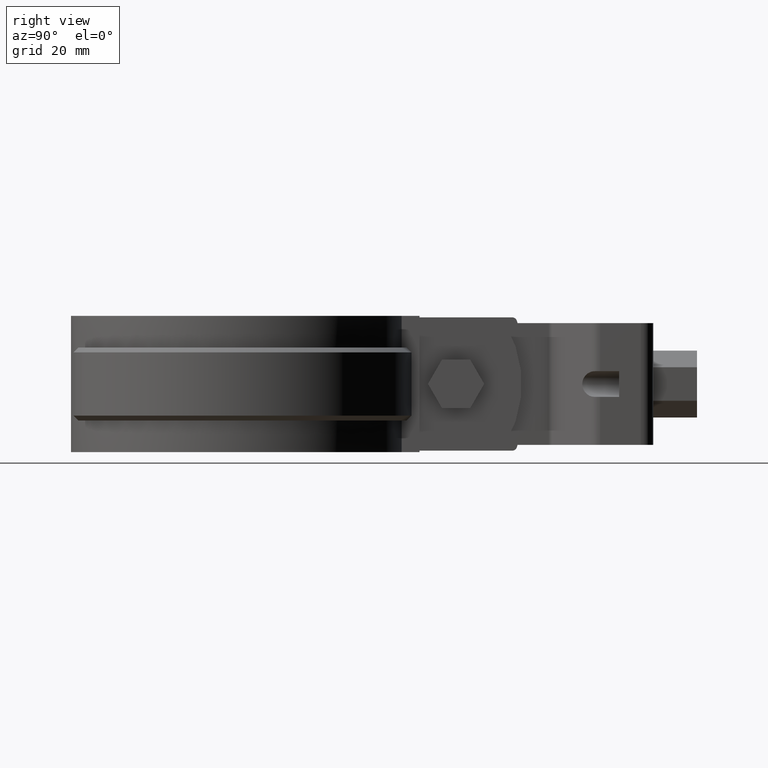
[diagram: clean part render]
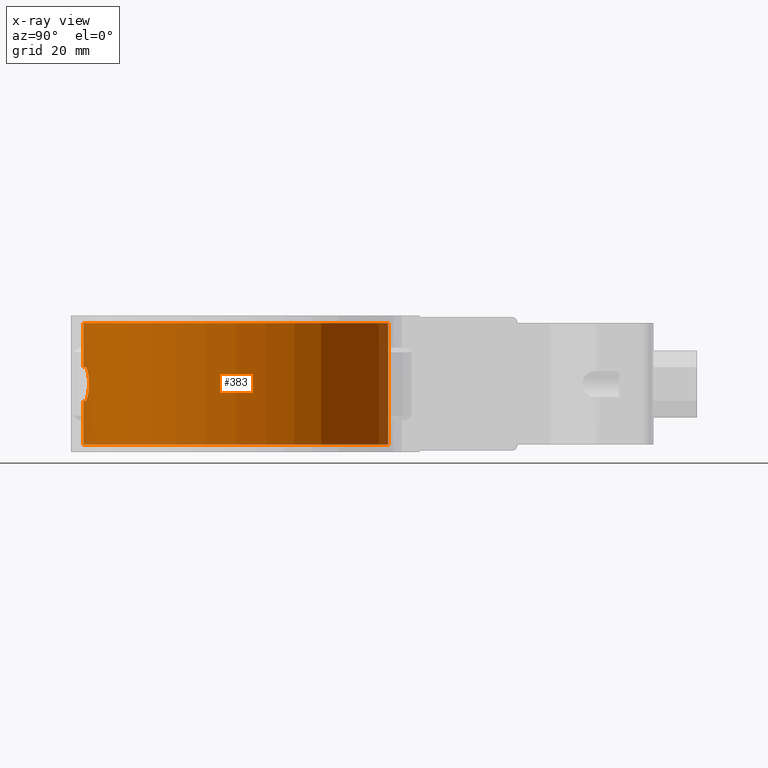
[diagram: x-ray — body ghosted, one internal face saturated and labeled with its STEP entity id]
A machine part, right view, then the same camera in x-ray: the body is ghosted and one INTERNAL B-rep face — a face not visible from any outside direction — is saturated and labeled: STEP entity #383.
In plain terms, the highlighted cylindrical surface (partial cylindrical patch) has radius 31.7 mm, axis along (0, 0, 1).
Its self-contained STEP definition (entity closure, byte-faithful):
#383 = ADVANCED_FACE( '', ( #750, #751 ), #752, .F. );
#750 = FACE_OUTER_BOUND( '', #1533, .T. );
#751 = FACE_BOUND( '', #1534, .T. );
#752 = CYLINDRICAL_SURFACE( '', #1535, 31.7000000000000 );
#1533 = EDGE_LOOP( '', ( #3444, #3445, #3446, #3447 ) );
#1534 = EDGE_LOOP( '', ( #3448, #3449, #3450, #3451, #3452, #3453, #3454, #3455, #3456, #3457, #3458, #3459, #3460, #3461, #3462, #3463 ) );
#1535 = AXIS2_PLACEMENT_3D( '', #3464, #3465, #3466 );
#3444 = ORIENTED_EDGE( '', *, *, #6912, .T. );
#3445 = ORIENTED_EDGE( '', *, *, #6825, .F. );
#3446 = ORIENTED_EDGE( '', *, *, #6913, .F. );
#3447 = ORIENTED_EDGE( '', *, *, #6902, .T. );
#3448 = ORIENTED_EDGE( '', *, *, #6914, .T. );
#3449 = ORIENTED_EDGE( '', *, *, #6887, .T. );
#3450 = ORIENTED_EDGE( '', *, *, #6908, .T. );
#3451 = ORIENTED_EDGE( '', *, *, #6915, .T. );
#3452 = ORIENTED_EDGE( '', *, *, #6916, .T. );
#3453 = ORIENTED_EDGE( '', *, *, #6917, .T. );
#3454 = ORIENTED_EDGE( '', *, *, #6910, .T. );
#3455 = ORIENTED_EDGE( '', *, *, #6918, .T. );
#3456 = ORIENTED_EDGE( '', *, *, #6919, .T. );
#3457 = ORIENTED_EDGE( '', *, *, #6894, .T. );
#3458 = ORIENTED_EDGE( '', *, *, #6920, .T. );
#3459 = ORIENTED_EDGE( '', *, *, #6905, .T. );
#3460 = ORIENTED_EDGE( '', *, *, #6921, .T. );
#3461 = ORIENTED_EDGE( '', *, *, #6922, .T. );
#3462 = ORIENTED_EDGE( '', *, *, #6923, .T. );
#3463 = ORIENTED_EDGE( '', *, *, #6924, .T. );
#3464 = CARTESIAN_POINT( '', ( 0.000000000000000, 0.000000000000000, 0.000000000000000 ) );
#3465 = DIRECTION( '', ( 0.000000000000000, 0.000000000000000, 1.00000000000000 ) );
#3466 = DIRECTION( '', ( 1.00000000000000, -6.12303176911189E-017, 0.000000000000000 ) );
#6825 = EDGE_CURVE( '', #7773, #7775, #7776, .T. );
#6887 = EDGE_CURVE( '', #7883, #7885, #7887, .T. );
#6894 = EDGE_CURVE( '', #7894, #7897, #7899, .T. );
#6902 = EDGE_CURVE( '', #7911, #7909, #7912, .T. );
#6905 = EDGE_CURVE( '', #7916, #7914, #7917, .T. );
#6908 = EDGE_CURVE( '', #7885, #7919, #7921, .T. );
#6910 = EDGE_CURVE( '', #7924, #7922, #7925, .T. );
#6912 = EDGE_CURVE( '', #7909, #7775, #7927, .T. );
#6913 = EDGE_CURVE( '', #7911, #7773, #7928, .T. );
#6914 = EDGE_CURVE( '', #7929, #7883, #7930, .T. );
#6915 = EDGE_CURVE( '', #7919, #7931, #7932, .T. );
#6916 = EDGE_CURVE( '', #7931, #7933, #7934, .T. );
#6917 = EDGE_CURVE( '', #7933, #7924, #7935, .T. );
#6918 = EDGE_CURVE( '', #7922, #7936, #7937, .F. );
#6919 = EDGE_CURVE( '', #7936, #7894, #7938, .T. );
#6920 = EDGE_CURVE( '', #7897, #7916, #7939, .T. );
#6921 = EDGE_CURVE( '', #7914, #7940, #7941, .T. );
#6922 = EDGE_CURVE( '', #7940, #7942, #7943, .T. );
#6923 = EDGE_CURVE( '', #7942, #7944, #7945, .T. );
#6924 = EDGE_CURVE( '', #7944, #7929, #7946, .T. );
#7773 = VERTEX_POINT( '', #9340 );
#7775 = VERTEX_POINT( '', #9342 );
#7776 = CIRCLE( '', #9343, 31.7000000000000 );
#7883 = VERTEX_POINT( '', #10019 );
#7885 = VERTEX_POINT( '', #10022 );
#7887 = B_SPLINE_CURVE_WITH_KNOTS( '', 3, ( #10025, #10026, #10027, #10028, #10029, #10030, #10031, #10032, #10033, #10034, #10035, #10036, #10037, #10038, #10039, #10040, #10041, #10042, #10043, #10044, #10045, #10046, #10047, #10048, #10049, #10050, #10051, #10052, #10053, #10054, #10055, #10056, #10057, #10058 ), .UNSPECIFIED., .F., .F., ( 4, 2, 2, 2, 2, 2, 2, 2, 2, 2, 2, 2, 2, 2, 2, 2, 4 ), ( 1.73472347597681E-018, 0.000691178977991198, 0.00138235795598239, 0.00207353693397359, 0.00276471591196479, 0.00345589488995598, 0.00414707386794718, 0.00483825284593837, 0.00552943182392957, 0.00622061080192076, 0.00691178977991196, 0.00760296875790316, 0.00829414773589435, 0.00898532671388555, 0.00967650569187675, 0.0103676846698679, 0.0110588636478591 ), .UNSPECIFIED. );
#7894 = VERTEX_POINT( '', #10071 );
#7897 = VERTEX_POINT( '', #10090 );
#7899 = B_SPLINE_CURVE_WITH_KNOTS( '', 3, ( #10093, #10094, #10095, #10096, #10097, #10098, #10099, #10100, #10101, #10102, #10103, #10104, #10105, #10106, #10107, #10108, #10109, #10110, #10111, #10112, #10113, #10114, #10115, #10116, #10117, #10118, #10119, #10120, #10121, #10122, #10123, #10124, #10125, #10126 ), .UNSPECIFIED., .F., .F., ( 4, 2, 2, 2, 2, 2, 2, 2, 2, 2, 2, 2, 2, 2, 2, 2, 4 ), ( 2.60208521396521E-018, 0.000691178977991202, 0.00138235795598240, 0.00207353693397360, 0.00276471591196480, 0.00345589488995600, 0.00414707386794720, 0.00483825284593840, 0.00552943182392960, 0.00622061080192080, 0.00691178977991200, 0.00760296875790319, 0.00829414773589440, 0.00898532671388559, 0.00967650569187679, 0.0103676846698680, 0.0110588636478592 ), .UNSPECIFIED. );
#7909 = VERTEX_POINT( '', #10142 );
#7911 = VERTEX_POINT( '', #10144 );
#7912 = CIRCLE( '', #10145, 31.7000000000000 );
#7914 = VERTEX_POINT( '', #10147 );
#7916 = VERTEX_POINT( '', #10150 );
#7917 = B_SPLINE_CURVE_WITH_KNOTS( '', 3, ( #10151, #10152, #10153, #10154, #10155, #10156 ), .UNSPECIFIED., .F., .F., ( 4, 2, 4 ), ( 1.83291103293370E-017, 0.000335973506900797, 0.000671947013801575 ), .UNSPECIFIED. );
#7919 = VERTEX_POINT( '', #10159 );
#7921 = CIRCLE( '', #10162, 31.7000000000000 );
#7922 = VERTEX_POINT( '', #10163 );
#7924 = VERTEX_POINT( '', #10166 );
#7925 = ELLIPSE( '', #10167, 144.411258446056, 31.7000000000000 );
#7927 = LINE( '', #10170, #10171 );
#7928 = LINE( '', #10172, #10173 );
#7929 = VERTEX_POINT( '', #10174 );
#7930 = CIRCLE( '', #10175, 31.7000000000000 );
#7931 = VERTEX_POINT( '', #10176 );
#7932 = B_SPLINE_CURVE_WITH_KNOTS( '', 3, ( #10177, #10178, #10179, #10180, #10181, #10182 ), .UNSPECIFIED., .F., .F., ( 4, 2, 4 ), ( 5.29611118950266E-013, 0.000335973507165463, 0.000671947013801314 ), .UNSPECIFIED. );
#7933 = VERTEX_POINT( '', #10183 );
#7934 = ELLIPSE( '', #10184, 144.411184778558, 31.7000000000000 );
#7935 = B_SPLINE_CURVE_WITH_KNOTS( '', 3, ( #10185, #10186, #10187, #10188, #10189, #10190, #10191, #10192, #10193, #10194 ), .UNSPECIFIED., .F., .F., ( 4, 2, 2, 2, 4 ), ( 1.08420217248550E-019, 0.000671593304811091, 0.00134318660962218, 0.00201477991443327, 0.00268637321924436 ), .UNSPECIFIED. );
#7936 = VERTEX_POINT( '', #10195 );
#7937 = B_SPLINE_CURVE_WITH_KNOTS( '', 3, ( #10196, #10197, #10198, #10199, #10200, #10201 ), .UNSPECIFIED., .F., .F., ( 4, 2, 4 ), ( 4.77048955893622E-018, 0.000335978814758097, 0.000671957629516190 ), .UNSPECIFIED. );
#7938 = CIRCLE( '', #10202, 31.7000000000000 );
#7939 = CIRCLE( '', #10203, 31.7000000000000 );
#7940 = VERTEX_POINT( '', #10204 );
#7941 = ELLIPSE( '', #10205, 144.411184778566, 31.7000000000000 );
#7942 = VERTEX_POINT( '', #10206 );
#7943 = B_SPLINE_CURVE_WITH_KNOTS( '', 3, ( #10207, #10208, #10209, #10210, #10211, #10212, #10213, #10214, #10215, #10216 ), .UNSPECIFIED., .F., .F., ( 4, 2, 2, 2, 4 ), ( 3.60405501852931E-018, 0.000671593304811073, 0.00134318660962214, 0.00201477991443321, 0.00268637321924428 ), .UNSPECIFIED. );
#7944 = VERTEX_POINT( '', #10217 );
#7945 = ELLIPSE( '', #10218, 144.411258446086, 31.7000000000000 );
#7946 = B_SPLINE_CURVE_WITH_KNOTS( '', 3, ( #10219, #10220, #10221, #10222, #10223, #10224 ), .UNSPECIFIED., .F., .F., ( 4, 2, 4 ), ( 2.72297965919038E-011, 0.000335977340831309, 0.000671954654432822 ), .UNSPECIFIED. );
#9340 = CARTESIAN_POINT( '', ( -6.85158501440923, 30.9506992294249, -25.0000000000000 ) );
#9342 = CARTESIAN_POINT( '', ( 6.85158501440922, 30.9506992294249, -25.0000000000000 ) );
#9343 = AXIS2_PLACEMENT_3D( '', #13463, #13464, #13465 );
#10019 = CARTESIAN_POINT( '', ( 4.99999999999994, -31.3031947251395, -16.0000000000000 ) );
#10022 = CARTESIAN_POINT( '', ( 4.99999999999998, -31.3031947251395, -9.00000000000000 ) );
#10025 = CARTESIAN_POINT( '', ( 4.99999999999994, -31.3031947251395, -16.0000000000000 ) );
#10026 = CARTESIAN_POINT( '', ( 5.23081910024182, -31.2663264274675, -16.0000000000000 ) );
#10027 = CARTESIAN_POINT( '', ( 5.45738421522882, -31.2275219453692, -15.9773939414123 ) );
#10028 = CARTESIAN_POINT( '', ( 5.90247544172498, -31.1464597182565, -15.8892487399415 ) );
#10029 = CARTESIAN_POINT( '', ( 6.12315325726274, -31.1037506549934, -15.8227316062684 ) );
#10030 = CARTESIAN_POINT( '', ( 6.54487208417165, -31.0177523367145, -15.6488710373945 ) );
#10031 = CARTESIAN_POINT( '', ( 6.74481423242998, -30.9747494185992, -15.5425631138281 ) );
#10032 = CARTESIAN_POINT( '', ( 7.12334046004379, -30.8898954557199, -15.2915931469428 ) );
#10033 = CARTESIAN_POINT( '', ( 7.30311137878176, -30.8477262237139, -15.1452760160951 ) );
#10034 = CARTESIAN_POINT( '', ( 7.62631920825298, -30.7694150792297, -14.8247052804094 ) );
#10035 = CARTESIAN_POINT( '', ( 7.77157588367680, -30.7328851187545, -14.6496730041195 ) );
#10036 = CARTESIAN_POINT( '', ( 8.02867606090605, -30.6667243139423, -14.2691377056956 ) );
#10037 = CARTESIAN_POINT( '', ( 8.13934190056048, -30.6373876935817, -14.0642976993771 ) );
#10038 = CARTESIAN_POINT( '', ( 8.31648141621118, -30.5897784907780, -13.6416855420022 ) );
#10039 = CARTESIAN_POINT( '', ( 8.38451105977690, -30.5711019272254, -13.4217325424685 ) );
#10040 = CARTESIAN_POINT( '', ( 8.47694833014009, -30.5455994500756, -12.9640434280687 ) );
#10041 = CARTESIAN_POINT( '', ( 8.49974920301185, -30.5392249992133, -12.7343293722691 ) );
#10042 = CARTESIAN_POINT( '', ( 8.50024672237687, -30.5390865240825, -12.2732234113051 ) );
#10043 = CARTESIAN_POINT( '', ( 8.47723220471891, -30.5455194596892, -12.0391304640455 ) );
#10044 = CARTESIAN_POINT( '', ( 8.38629254935334, -30.5706120676645, -11.5853594668399 ) );
#10045 = CARTESIAN_POINT( '', ( 8.31906478371752, -30.5890766914278, -11.3655400964245 ) );
#10046 = CARTESIAN_POINT( '', ( 8.14150355722474, -30.6368139912987, -10.9398251023431 ) );
#10047 = CARTESIAN_POINT( '', ( 8.03076765310164, -30.6661722941769, -10.7346064188871 ) );
#10048 = CARTESIAN_POINT( '', ( 7.77563070415962, -30.7318551250454, -10.3556956238798 ) );
#10049 = CARTESIAN_POINT( '', ( 7.62997081570169, -30.7685189506177, -10.1791809289734 ) );
#10050 = CARTESIAN_POINT( '', ( 7.30348785322526, -30.8476462350172, -9.85483623154876 ) );
#10051 = CARTESIAN_POINT( '', ( 7.12722269205163, -30.8889972279326, -9.71138767962017 ) );
#10052 = CARTESIAN_POINT( '', ( 6.74955200051345, -30.9737146761845, -9.46018045725523 ) );
#10053 = CARTESIAN_POINT( '', ( 6.54577848582118, -31.0175583875793, -9.35160091934774 ) );
#10054 = CARTESIAN_POINT( '', ( 6.12482112184694, -31.1034195955639, -9.17785831997991 ) );
#10055 = CARTESIAN_POINT( '', ( 5.90798227914970, -31.1454209708295, -9.11216918094830 ) );
#10056 = CARTESIAN_POINT( '', ( 5.46145874370245, -31.2268149264661, -9.02309256585295 ) );
#10057 = CARTESIAN_POINT( '', ( 5.23082235296644, -31.2663259079160, -9.00000000000000 ) );
#10058 = CARTESIAN_POINT( '', ( 4.99999999999997, -31.3031947251395, -9.00000000000000 ) );
#10071 = CARTESIAN_POINT( '', ( -5.00000000000005, -31.3031947251395, -9.00000000000000 ) );
#10090 = CARTESIAN_POINT( '', ( -5.00000000000005, -31.3031947251395, -16.0000000000000 ) );
#10093 = CARTESIAN_POINT( '', ( -5.00000000000004, -31.3031947251395, -9.00000000000000 ) );
#10094 = CARTESIAN_POINT( '', ( -5.23081910024193, -31.2663264274675, -9.00000000000000 ) );
#10095 = CARTESIAN_POINT( '', ( -5.45738421522893, -31.2275219453692, -9.02260605858769 ) );
#10096 = CARTESIAN_POINT( '', ( -5.90247544172509, -31.1464597182565, -9.11075126005854 ) );
#10097 = CARTESIAN_POINT( '', ( -6.12315325726285, -31.1037506549934, -9.17726839373161 ) );
#10098 = CARTESIAN_POINT( '', ( -6.54487208417176, -31.0177523367145, -9.35112896260550 ) );
#10099 = CARTESIAN_POINT( '', ( -6.74481423243010, -30.9747494185992, -9.45743688617195 ) );
#10100 = CARTESIAN_POINT( '', ( -7.12334046004391, -30.8898954557199, -9.70840685305716 ) );
#10101 = CARTESIAN_POINT( '', ( -7.30311137878188, -30.8477262237138, -9.85472398390489 ) );
#10102 = CARTESIAN_POINT( '', ( -7.62631920825310, -30.7694150792296, -10.1752947195906 ) );
#10103 = CARTESIAN_POINT( '', ( -7.77157588367692, -30.7328851187544, -10.3503269958805 ) );
#10104 = CARTESIAN_POINT( '', ( -8.02867606090617, -30.6667243139423, -10.7308622943045 ) );
#10105 = CARTESIAN_POINT( '', ( -8.13934190056059, -30.6373876935816, -10.9357023006229 ) );
#10106 = CARTESIAN_POINT( '', ( -8.31648141621130, -30.5897784907780, -11.3583144579978 ) );
#10107 = CARTESIAN_POINT( '', ( -8.38451105977702, -30.5711019272253, -11.5782674575315 ) );
#10108 = CARTESIAN_POINT( '', ( -8.47694833014020, -30.5455994500755, -12.0359565719314 ) );
#10109 = CARTESIAN_POINT( '', ( -8.49974920301196, -30.5392249992133, -12.2656706277309 ) );
#10110 = CARTESIAN_POINT( '', ( -8.50024672237697, -30.5390865240824, -12.7267765886949 ) );
#10111 = CARTESIAN_POINT( '', ( -8.47723220471902, -30.5455194596891, -12.9608695359546 ) );
#10112 = CARTESIAN_POINT( '', ( -8.38629254935345, -30.5706120676645, -13.4146405331601 ) );
#10113 = CARTESIAN_POINT( '', ( -8.31906478371762, -30.5890766914277, -13.6344599035756 ) );
#10114 = CARTESIAN_POINT( '', ( -8.14150355722484, -30.6368139912987, -14.0601748976569 ) );
#10115 = CARTESIAN_POINT( '', ( -8.03076765310174, -30.6661722941769, -14.2653935811129 ) );
#10116 = CARTESIAN_POINT( '', ( -7.77563070415972, -30.7318551250453, -14.6443043761202 ) );
#10117 = CARTESIAN_POINT( '', ( -7.62997081570178, -30.7685189506177, -14.8208190710266 ) );
#10118 = CARTESIAN_POINT( '', ( -7.30348785322534, -30.8476462350172, -15.1451637684513 ) );
#10119 = CARTESIAN_POINT( '', ( -7.12722269205171, -30.8889972279325, -15.2886123203798 ) );
#10120 = CARTESIAN_POINT( '', ( -6.74955200051352, -30.9737146761845, -15.5398195427448 ) );
#10121 = CARTESIAN_POINT( '', ( -6.54577848582126, -31.0175583875793, -15.6483990806523 ) );
#10122 = CARTESIAN_POINT( '', ( -6.12482112184701, -31.1034195955639, -15.8221416800201 ) );
#10123 = CARTESIAN_POINT( '', ( -5.90798227914977, -31.1454209708295, -15.8878308190517 ) );
#10124 = CARTESIAN_POINT( '', ( -5.46145874370252, -31.2268149264661, -15.9769074341471 ) );
#10125 = CARTESIAN_POINT( '', ( -5.23082235296652, -31.2663259079160, -16.0000000000000 ) );
#10126 = CARTESIAN_POINT( '', ( -5.00000000000005, -31.3031947251395, -16.0000000000000 ) );
#10142 = CARTESIAN_POINT( '', ( 6.85158501440922, 30.9506992294249, 0.000000000000000 ) );
#10144 = CARTESIAN_POINT( '', ( -6.85158501440923, 30.9506992294249, 0.000000000000000 ) );
#10145 = AXIS2_PLACEMENT_3D( '', #13533, #13534, #13535 );
#10147 = CARTESIAN_POINT( '', ( -1.16219499999940, -31.6786884637287, -16.3902439999999 ) );
#10150 = CARTESIAN_POINT( '', ( -1.64999999892707, -31.6570292352827, -16.0000000000000 ) );
#10151 = CARTESIAN_POINT( '', ( -1.64999999892707, -31.6570292352827, -15.9999999999999 ) );
#10152 = CARTESIAN_POINT( '', ( -1.53655198132330, -31.6629422736645, -15.9999999997564 ) );
#10153 = CARTESIAN_POINT( '', ( -1.42642396476777, -31.6680152640239, -16.0385868486749 ) );
#10154 = CARTESIAN_POINT( '', ( -1.24908741098020, -31.6755056270526, -16.1803791759603 ) );
#10155 = CARTESIAN_POINT( '', ( -1.18713198532160, -31.6777736013697, -16.2794129519047 ) );
#10156 = CARTESIAN_POINT( '', ( -1.16219499999994, -31.6786884637287, -16.3902440000002 ) );
#10159 = CARTESIAN_POINT( '', ( 1.64999999946345, -31.6570292352547, -8.99999999999997 ) );
#10162 = AXIS2_PLACEMENT_3D( '', #13542, #13543, #13544 );
#10163 = CARTESIAN_POINT( '', ( -1.16219510888267, -31.6786884597341, -8.60975603947825 ) );
#10166 = CARTESIAN_POINT( '', ( -0.975610000000023, -31.6849835904629, -7.78048800000004 ) );
#10167 = AXIS2_PLACEMENT_3D( '', #13546, #13547, #13548 );
#10170 = CARTESIAN_POINT( '', ( 6.85158501440921, 30.9506992294249, 0.000000000000000 ) );
#10171 = VECTOR( '', #13550, 1000.00000000000 );
#10172 = CARTESIAN_POINT( '', ( -6.85158501440923, 30.9506992294249, 0.000000000000000 ) );
#10173 = VECTOR( '', #13551, 1000.00000000000 );
#10174 = CARTESIAN_POINT( '', ( 1.65000000000008, -31.6570292352267, -16.0000000000000 ) );
#10175 = AXIS2_PLACEMENT_3D( '', #13552, #13553, #13554 );
#10176 = CARTESIAN_POINT( '', ( 1.16219499999591, -31.6786884637288, -8.60975600000150 ) );
#10177 = CARTESIAN_POINT( '', ( 1.64999999892696, -31.6570292352827, -8.99999999999995 ) );
#10178 = CARTESIAN_POINT( '', ( 1.53655198141265, -31.6629422736599, -9.00000000024340 ) );
#10179 = CARTESIAN_POINT( '', ( 1.42642396445828, -31.6680152640375, -8.96141315115555 ) );
#10180 = CARTESIAN_POINT( '', ( 1.24908741087039, -31.6755056270567, -8.81962082387379 ) );
#10181 = CARTESIAN_POINT( '', ( 1.18713198530254, -31.6777736013704, -8.72058704800908 ) );
#10182 = CARTESIAN_POINT( '', ( 1.16219500000024, -31.6786884637286, -8.60975600000112 ) );
#10183 = CARTESIAN_POINT( '', ( 0.975609757981811, -31.6849835979148, -7.78048781325256 ) );
#10184 = AXIS2_PLACEMENT_3D( '', #13555, #13556, #13557 );
#10185 = CARTESIAN_POINT( '', ( 0.975609757981810, -31.6849835979148, -7.78048781325256 ) );
#10186 = CARTESIAN_POINT( '', ( 0.925762090024734, -31.6865184534126, -7.55894271246155 ) );
#10187 = CARTESIAN_POINT( '', ( 0.802004224886770, -31.6903492755237, -7.36098149762314 ) );
#10188 = CARTESIAN_POINT( '', ( 0.447401526348110, -31.6973386872722, -7.07729349203978 ) );
#10189 = CARTESIAN_POINT( '', ( 0.227087794269849, -31.7000000051551, -6.99999985585795 ) );
#10190 = CARTESIAN_POINT( '', ( -0.227089233509890, -31.6999999948449, -7.00000013727509 ) );
#10191 = CARTESIAN_POINT( '', ( -0.447421156045869, -31.6973383527115, -7.07730562708405 ) );
#10192 = CARTESIAN_POINT( '', ( -0.802003305823674, -31.6903492412848, -7.36098401156451 ) );
#10193 = CARTESIAN_POINT( '', ( -0.925762373480278, -31.6865184450658, -7.55894288535638 ) );
#10194 = CARTESIAN_POINT( '', ( -0.975610000000021, -31.6849835904628, -7.78048800000004 ) );
#10195 = CARTESIAN_POINT( '', ( -1.65000000000003, -31.6570292352267, -8.99999999999997 ) );
#10196 = CARTESIAN_POINT( '', ( -1.65000000000003, -31.6570292352267, -8.99999999999994 ) );
#10197 = CARTESIAN_POINT( '', ( -1.53655019009462, -31.6629423670292, -8.99999999999994 ) );
#10198 = CARTESIAN_POINT( '', ( -1.42642056639973, -31.6680154193151, -8.96141198681574 ) );
#10199 = CARTESIAN_POINT( '', ( -1.24908242971902, -31.6755058257006, -8.81961521638724 ) );
#10200 = CARTESIAN_POINT( '', ( -1.18712928310368, -31.6777737004201, -8.72057465318549 ) );
#10201 = CARTESIAN_POINT( '', ( -1.16219510888267, -31.6786884597341, -8.60975603947825 ) );
#10202 = AXIS2_PLACEMENT_3D( '', #13558, #13559, #13560 );
#10203 = AXIS2_PLACEMENT_3D( '', #13561, #13562, #13563 );
#10204 = CARTESIAN_POINT( '', ( -0.975609757981846, -31.6849835979148, -17.2195121867475 ) );
#10205 = AXIS2_PLACEMENT_3D( '', #13564, #13565, #13566 );
#10206 = CARTESIAN_POINT( '', ( 0.975610000000007, -31.6849835904628, -17.2195120000000 ) );
#10207 = CARTESIAN_POINT( '', ( -0.975609757981839, -31.6849835979148, -17.2195121867475 ) );
#10208 = CARTESIAN_POINT( '', ( -0.925762090024746, -31.6865184534126, -17.4410572875385 ) );
#10209 = CARTESIAN_POINT( '', ( -0.802004224886773, -31.6903492755237, -17.6390185023769 ) );
#10210 = CARTESIAN_POINT( '', ( -0.447401526348109, -31.6973386872722, -17.9227065079602 ) );
#10211 = CARTESIAN_POINT( '', ( -0.227087794269858, -31.7000000051551, -18.0000001441421 ) );
#10212 = CARTESIAN_POINT( '', ( 0.227089233509872, -31.6999999948449, -17.9999998627249 ) );
#10213 = CARTESIAN_POINT( '', ( 0.447421156045837, -31.6973383527115, -17.9226943729160 ) );
#10214 = CARTESIAN_POINT( '', ( 0.802003305823643, -31.6903492412848, -17.6390159884355 ) );
#10215 = CARTESIAN_POINT( '', ( 0.925762373480247, -31.6865184450658, -17.4410571146437 ) );
#10216 = CARTESIAN_POINT( '', ( 0.975610000000001, -31.6849835904628, -17.2195120000000 ) );
#10217 = CARTESIAN_POINT( '', ( 1.16219511494476, -31.6786884595117, -16.3902439335737 ) );
#10218 = AXIS2_PLACEMENT_3D( '', #13567, #13568, #13569 );
#10219 = CARTESIAN_POINT( '', ( 1.16219510888267, -31.6786884597341, -16.3902439605215 ) );
#10220 = CARTESIAN_POINT( '', ( 1.18713207574565, -31.6777735979665, -16.2794129350655 ) );
#10221 = CARTESIAN_POINT( '', ( 1.24908358340814, -31.6755057839338, -16.1803829370760 ) );
#10222 = CARTESIAN_POINT( '', ( 1.42642437785364, -31.6680152513641, -16.0385858896968 ) );
#10223 = CARTESIAN_POINT( '', ( 1.53655200659782, -31.6629422723510, -16.0000000000000 ) );
#10224 = CARTESIAN_POINT( '', ( 1.65000000000015, -31.6570292352267, -16.0000000000000 ) );
#13463 = CARTESIAN_POINT( '', ( 0.000000000000000, 0.000000000000000, -25.0000000000000 ) );
#13464 = DIRECTION( '', ( 0.000000000000000, 0.000000000000000, 1.00000000000000 ) );
#13465 = DIRECTION( '', ( 1.00000000000000, 0.000000000000000, 0.000000000000000 ) );
#13533 = CARTESIAN_POINT( '', ( 0.000000000000000, 0.000000000000000, 0.000000000000000 ) );
#13534 = DIRECTION( '', ( 0.000000000000000, 0.000000000000000, 1.00000000000000 ) );
#13535 = DIRECTION( '', ( 1.00000000000000, 0.000000000000000, 0.000000000000000 ) );
#13542 = CARTESIAN_POINT( '', ( 0.000000000000000, 0.000000000000000, -9.00000000000000 ) );
#13543 = DIRECTION( '', ( 6.12303176911189E-017, 0.000000000000000, -1.00000000000000 ) );
#13544 = DIRECTION( '', ( -1.00000000000000, 0.000000000000000, -6.12303176911189E-017 ) );
#13546 = CARTESIAN_POINT( '', ( 0.000000000000000, 0.000000000000000, -3.44443890776445 ) );
#13547 = DIRECTION( '', ( 0.975609806487711, 0.000000000000000, -0.219511971165610 ) );
#13548 = DIRECTION( '', ( -0.219511971165610, 0.000000000000000, -0.975609806487711 ) );
#13550 = DIRECTION( '', ( 0.000000000000000, 0.000000000000000, -1.00000000000000 ) );
#13551 = DIRECTION( '', ( 0.000000000000000, 0.000000000000000, -1.00000000000000 ) );
#13552 = CARTESIAN_POINT( '', ( 0.000000000000000, 0.000000000000000, -16.0000000000000 ) );
#13553 = DIRECTION( '', ( -8.60661872008575E-082, 3.74915180455535E-033, 1.00000000000000 ) );
#13554 = DIRECTION( '', ( 0.000000000000000, -1.00000000000000, 3.74915180455535E-033 ) );
#13555 = CARTESIAN_POINT( '', ( 0.000000000000000, 0.000000000000000, -3.44444212055032 ) );
#13556 = DIRECTION( '', ( -0.975609781292647, 0.000000000000000, -0.219512083143762 ) );
#13557 = DIRECTION( '', ( 0.219512083143762, 0.000000000000000, -0.975609781292647 ) );
#13558 = CARTESIAN_POINT( '', ( 0.000000000000000, 0.000000000000000, -9.00000000000000 ) );
#13559 = DIRECTION( '', ( 6.12303176911189E-017, 0.000000000000000, -1.00000000000000 ) );
#13560 = DIRECTION( '', ( -1.00000000000000, 0.000000000000000, -6.12303176911189E-017 ) );
#13561 = CARTESIAN_POINT( '', ( 0.000000000000000, 0.000000000000000, -16.0000000000000 ) );
#13562 = DIRECTION( '', ( -8.60661872008575E-082, 3.74915180455535E-033, 1.00000000000000 ) );
#13563 = DIRECTION( '', ( 0.000000000000000, -1.00000000000000, 3.74915180455535E-033 ) );
#13564 = CARTESIAN_POINT( '', ( 0.000000000000000, 0.000000000000000, -21.5555578794501 ) );
#13565 = DIRECTION( '', ( 0.975609781292650, 0.000000000000000, 0.219512083143750 ) );
#13566 = DIRECTION( '', ( 0.219512083143750, 0.000000000000000, -0.975609781292650 ) );
#13567 = CARTESIAN_POINT( '', ( 0.000000000000000, 0.000000000000000, -21.5555610922364 ) );
#13568 = DIRECTION( '', ( -0.975609806487721, 0.000000000000000, 0.219511971165564 ) );
#13569 = DIRECTION( '', ( -0.219511971165564, 0.000000000000000, -0.975609806487721 ) );